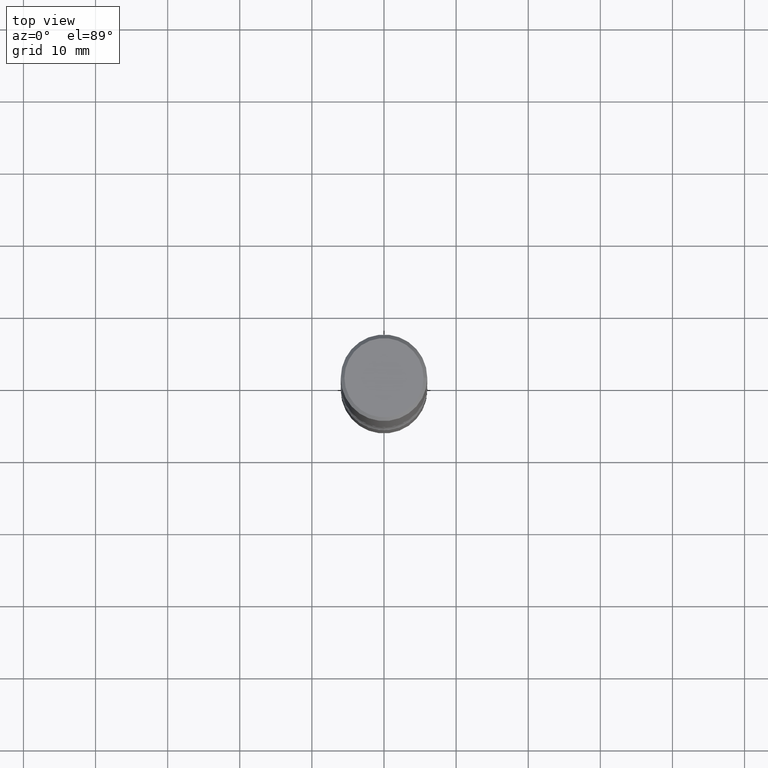
[diagram: clean part render]
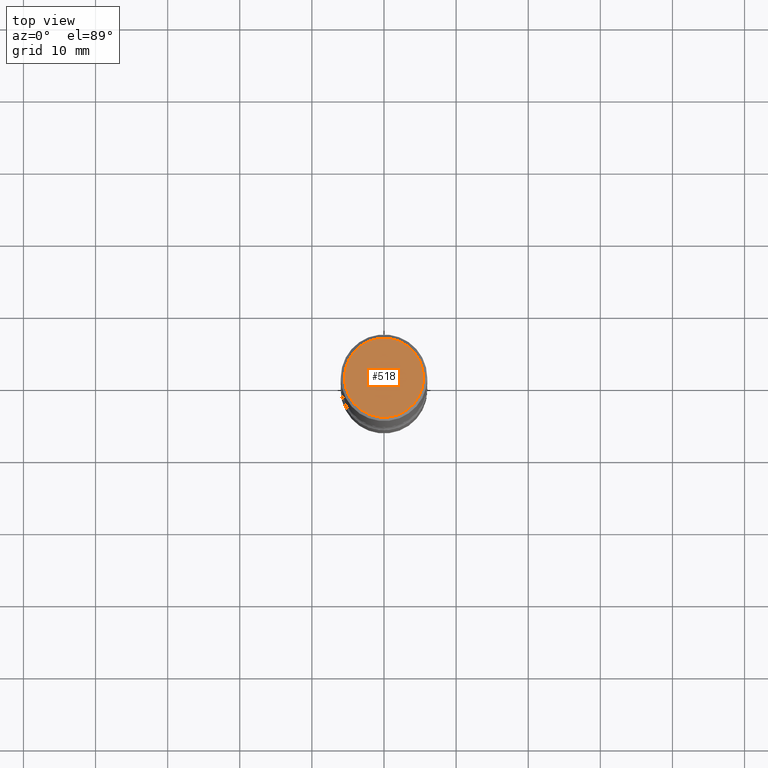
[diagram: same view with one face highlighted and labeled with its STEP entity id]
A machine part, top view. The second image highlights one B-rep face of the part: STEP entity #518.
In plain terms, the highlighted planar face has unit normal (0, -0, -1).
Its self-contained STEP definition (entity closure, byte-faithful):
#3 = AXIS2_PLACEMENT_3D ( 'NONE', #316, #319, #182 ) ;
#16 = CIRCLE ( 'NONE', #3, 0.2161999999999998368 ) ;
#68 = CARTESIAN_POINT ( 'NONE',  ( -1.043851414335219820E-46, 1.490343170380447200E-32, 4.268512490100411279E-18 ) ) ;
#75 = DIRECTION ( 'NONE',  ( 2.438088387897960049E-29, -3.491481338843145188E-15, -1.000000000000000000 ) ) ;
#117 = DIRECTION ( 'NONE',  ( 1.000000000000000000, -6.982962677686266711E-15, 4.876217060660159599E-29 ) ) ;
#141 = EDGE_LOOP ( 'NONE', ( #198, #330 ) ) ;
#182 = DIRECTION ( 'NONE',  ( 1.000000000000000000, -6.982962677686266711E-15, 4.876217060660159599E-29 ) ) ;
#185 = CIRCLE ( 'NONE', #503, 0.2161999999999998368 ) ;
#190 = PLANE ( 'NONE',  #523 ) ;
#198 = ORIENTED_EDGE ( 'NONE', *, *, #231, .T. ) ;
#231 = EDGE_CURVE ( 'NONE', #392, #307, #16, .T. ) ;
#249 = DIRECTION ( 'NONE',  ( -1.000000000000000000, 6.982962677686265922E-15, -4.876176775795935793E-29 ) ) ;
#291 = CARTESIAN_POINT ( 'NONE',  ( 1.509716530915769534E-15, 0.2161999999999998368, -7.527240092128373149E-16 ) ) ;
#307 = VERTEX_POINT ( 'NONE', #520 ) ;
#316 = CARTESIAN_POINT ( 'NONE',  ( -1.043851414335219820E-46, 1.490343170380447200E-32, 4.268512490100411279E-18 ) ) ;
#319 = DIRECTION ( 'NONE',  ( -2.445468806185136597E-29, 3.491481338843145583E-15, 1.000000000000000000 ) ) ;
#330 = ORIENTED_EDGE ( 'NONE', *, *, #497, .T. ) ;
#375 = DIRECTION ( 'NONE',  ( -2.445468806185136597E-29, 3.491481338843145583E-15, 1.000000000000000000 ) ) ;
#392 = VERTEX_POINT ( 'NONE', #435 ) ;
#435 = CARTESIAN_POINT ( 'NONE',  ( -0.2161999999999998368, 1.544631344304201183E-15, 4.268512490089730842E-18 ) ) ;
#497 = EDGE_CURVE ( 'NONE', #307, #392, #185, .T. ) ;
#503 = AXIS2_PLACEMENT_3D ( 'NONE', #68, #375, #117 ) ;
#508 = FACE_OUTER_BOUND ( 'NONE', #141, .T. ) ;
#518 = ADVANCED_FACE ( 'NONE', ( #508 ), #190, .F. ) ;
#520 = CARTESIAN_POINT ( 'NONE',  ( 0.2161999999999998368, -1.586759460484351002E-15, 4.268512490111238857E-18 ) ) ;
#523 = AXIS2_PLACEMENT_3D ( 'NONE', #291, #75, #249 ) ;